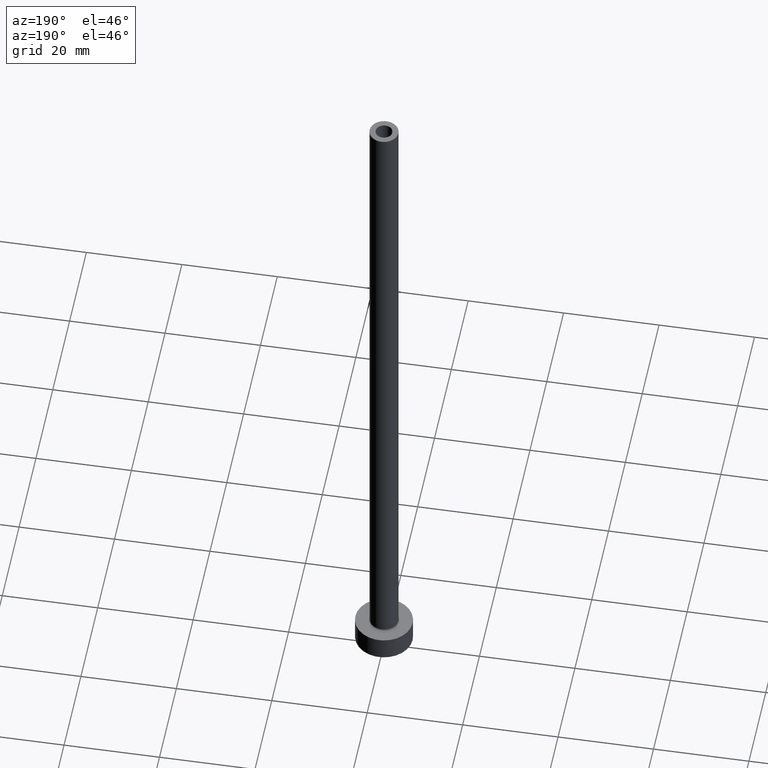
[diagram: clean part render]
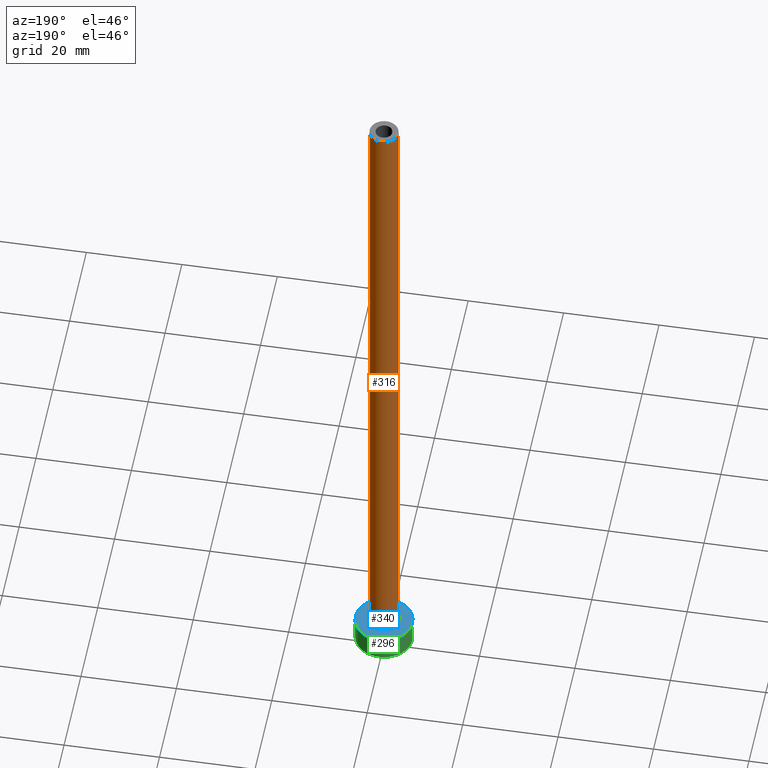
[diagram: same view with three faces highlighted in distinct colors, each labeled with its STEP entity id]
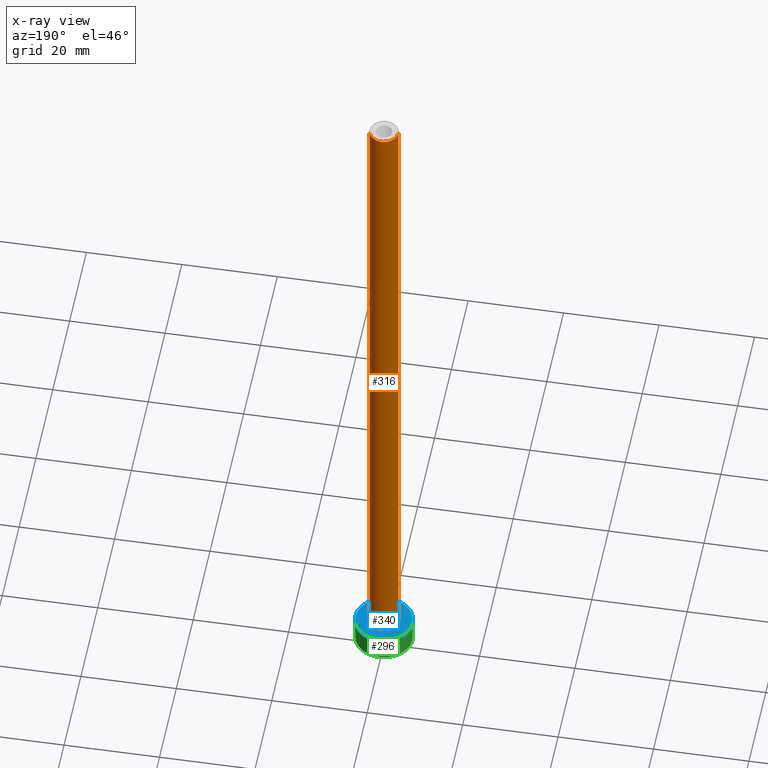
[diagram: x-ray of the same camera — body ghosted, the three highlighted faces saturated]
A machine part, auxiliary view with three faces highlighted in distinct colors.
The next image is the same camera in x-ray (body ghosted, the three faces saturated) — at least one of them is partly hidden behind the body in this view.
Their STEP definitions:

[orange] entity #316 — the highlighted cylindrical surface (edge-blend (fillet) strip) has radius 3 mm, axis along (-0, -0, -1).
#29 = DIRECTION ( 'NONE',  ( 0.000000000000000000, 0.000000000000000000, 1.000000000000000000 ) ) ;
#32 = CARTESIAN_POINT ( 'NONE',  ( 0.000000000000000000, 0.000000000000000000, 150.0000000000000000 ) ) ;
#38 = ORIENTED_EDGE ( 'NONE', *, *, #421, .F. ) ;
#41 = EDGE_CURVE ( 'NONE', #439, #371, #423, .T. ) ;
#47 = EDGE_LOOP ( 'NONE', ( #38, #87, #286, #305 ) ) ;
#67 = EDGE_CURVE ( 'NONE', #326, #439, #315, .T. ) ;
#70 = FACE_OUTER_BOUND ( 'NONE', #47, .T. ) ;
#84 = CARTESIAN_POINT ( 'NONE',  ( 3.000000000000000444, 3.673940397442060361E-16, 5.299999999999998934 ) ) ;
#87 = ORIENTED_EDGE ( 'NONE', *, *, #67, .T. ) ;
#100 = DIRECTION ( 'NONE',  ( -0.000000000000000000, -0.000000000000000000, -1.000000000000000000 ) ) ;
#109 = CYLINDRICAL_SURFACE ( 'NONE', #185, 3.000000000000000444 ) ;
#147 = DIRECTION ( 'NONE',  ( 0.000000000000000000, 0.000000000000000000, 1.000000000000000000 ) ) ;
#154 = AXIS2_PLACEMENT_3D ( 'NONE', #177, #29, #377 ) ;
#177 = CARTESIAN_POINT ( 'NONE',  ( 0.000000000000000000, 0.000000000000000000, 5.299999999999998934 ) ) ;
#185 = AXIS2_PLACEMENT_3D ( 'NONE', #387, #354, #319 ) ;
#194 = EDGE_CURVE ( 'NONE', #328, #371, #434, .T. ) ;
#213 = CARTESIAN_POINT ( 'NONE',  ( -3.000000000000000444, 0.000000000000000000, 150.0000000000000000 ) ) ;
#229 = VECTOR ( 'NONE', #389, 1000.000000000000000 ) ;
#237 = CARTESIAN_POINT ( 'NONE',  ( 3.000000000000000444, 3.673940397442060361E-16, 150.0000000000000000 ) ) ;
#243 = CARTESIAN_POINT ( 'NONE',  ( -3.000000000000000444, 0.000000000000000000, 5.299999999999998934 ) ) ;
#285 = VECTOR ( 'NONE', #100, 1000.000000000000000 ) ;
#286 = ORIENTED_EDGE ( 'NONE', *, *, #41, .T. ) ;
#305 = ORIENTED_EDGE ( 'NONE', *, *, #194, .F. ) ;
#315 = LINE ( 'NONE', #237, #285 ) ;
#316 = ADVANCED_FACE ( 'NONE', ( #70 ), #109, .T. ) ;
#319 = DIRECTION ( 'NONE',  ( -1.000000000000000000, 0.000000000000000000, 0.000000000000000000 ) ) ;
#325 = CIRCLE ( 'NONE', #350, 3.000000000000000444 ) ;
#326 = VERTEX_POINT ( 'NONE', #357 ) ;
#328 = VERTEX_POINT ( 'NONE', #460 ) ;
#350 = AXIS2_PLACEMENT_3D ( 'NONE', #32, #147, #427 ) ;
#354 = DIRECTION ( 'NONE',  ( -0.000000000000000000, -0.000000000000000000, -1.000000000000000000 ) ) ;
#357 = CARTESIAN_POINT ( 'NONE',  ( 3.000000000000000444, 3.673940397442060361E-16, 150.0000000000000000 ) ) ;
#371 = VERTEX_POINT ( 'NONE', #243 ) ;
#377 = DIRECTION ( 'NONE',  ( 1.000000000000000000, 0.000000000000000000, 0.000000000000000000 ) ) ;
#387 = CARTESIAN_POINT ( 'NONE',  ( 0.000000000000000000, 0.000000000000000000, 150.0000000000000000 ) ) ;
#389 = DIRECTION ( 'NONE',  ( -0.000000000000000000, -0.000000000000000000, -1.000000000000000000 ) ) ;
#421 = EDGE_CURVE ( 'NONE', #326, #328, #325, .T. ) ;
#423 = CIRCLE ( 'NONE', #154, 3.000000000000000444 ) ;
#427 = DIRECTION ( 'NONE',  ( 1.000000000000000000, 0.000000000000000000, 0.000000000000000000 ) ) ;
#434 = LINE ( 'NONE', #213, #229 ) ;
#439 = VERTEX_POINT ( 'NONE', #84 ) ;
#460 = CARTESIAN_POINT ( 'NONE',  ( -3.000000000000000444, 0.000000000000000000, 150.0000000000000000 ) ) ;

[blue] entity #340 — the highlighted planar face has unit normal (0, 0, 1).
#3 = FACE_OUTER_BOUND ( 'NONE', #355, .T. ) ;
#4 = DIRECTION ( 'NONE',  ( 1.000000000000000000, 0.000000000000000000, -0.000000000000000000 ) ) ;
#7 = CIRCLE ( 'NONE', #254, 3.300000000000000266 ) ;
#24 = EDGE_CURVE ( 'NONE', #400, #337, #293, .T. ) ;
#58 = CIRCLE ( 'NONE', #405, 6.000000000000000888 ) ;
#69 = CARTESIAN_POINT ( 'NONE',  ( 3.300000000000000266, 0.000000000000000000, 4.999999999999999112 ) ) ;
#89 = ORIENTED_EDGE ( 'NONE', *, *, #134, .T. ) ;
#91 = DIRECTION ( 'NONE',  ( 1.000000000000000000, 0.000000000000000000, 0.000000000000000000 ) ) ;
#94 = AXIS2_PLACEMENT_3D ( 'NONE', #136, #342, #240 ) ;
#134 = EDGE_CURVE ( 'NONE', #241, #395, #276, .T. ) ;
#136 = CARTESIAN_POINT ( 'NONE',  ( 0.000000000000000000, 0.000000000000000000, 5.000000000000000000 ) ) ;
#142 = CARTESIAN_POINT ( 'NONE',  ( 0.000000000000000000, 0.000000000000000000, 5.000000000000000000 ) ) ;
#144 = DIRECTION ( 'NONE',  ( 0.000000000000000000, 0.000000000000000000, 1.000000000000000000 ) ) ;
#148 = PLANE ( 'NONE',  #284 ) ;
#169 = ORIENTED_EDGE ( 'NONE', *, *, #24, .T. ) ;
#183 = CARTESIAN_POINT ( 'NONE',  ( 0.000000000000000000, 0.000000000000000000, 5.000000000000000000 ) ) ;
#184 = CARTESIAN_POINT ( 'NONE',  ( -3.300000000000000266, 4.041334437186266003E-16, 4.999999999999999112 ) ) ;
#209 = CARTESIAN_POINT ( 'NONE',  ( 6.000000000000000888, 7.347880794884120722E-16, 5.000000000000000000 ) ) ;
#240 = DIRECTION ( 'NONE',  ( 1.000000000000000000, 0.000000000000000000, 0.000000000000000000 ) ) ;
#241 = VERTEX_POINT ( 'NONE', #304 ) ;
#250 = DIRECTION ( 'NONE',  ( 0.000000000000000000, 0.000000000000000000, 1.000000000000000000 ) ) ;
#252 = EDGE_CURVE ( 'NONE', #337, #400, #7, .T. ) ;
#253 = AXIS2_PLACEMENT_3D ( 'NONE', #142, #281, #420 ) ;
#254 = AXIS2_PLACEMENT_3D ( 'NONE', #403, #338, #91 ) ;
#276 = CIRCLE ( 'NONE', #253, 6.000000000000000888 ) ;
#281 = DIRECTION ( 'NONE',  ( 0.000000000000000000, 0.000000000000000000, 1.000000000000000000 ) ) ;
#284 = AXIS2_PLACEMENT_3D ( 'NONE', #287, #144, #4 ) ;
#287 = CARTESIAN_POINT ( 'NONE',  ( 0.000000000000000000, 0.000000000000000000, 5.000000000000000000 ) ) ;
#289 = DIRECTION ( 'NONE',  ( 1.000000000000000000, 0.000000000000000000, 0.000000000000000000 ) ) ;
#293 = CIRCLE ( 'NONE', #94, 3.300000000000000266 ) ;
#304 = CARTESIAN_POINT ( 'NONE',  ( -6.000000000000000888, 0.000000000000000000, 5.000000000000000000 ) ) ;
#310 = ORIENTED_EDGE ( 'NONE', *, *, #367, .T. ) ;
#322 = FACE_BOUND ( 'NONE', #443, .T. ) ;
#337 = VERTEX_POINT ( 'NONE', #184 ) ;
#338 = DIRECTION ( 'NONE',  ( -0.000000000000000000, -0.000000000000000000, -1.000000000000000000 ) ) ;
#340 = ADVANCED_FACE ( 'NONE', ( #322, #3 ), #148, .T. ) ;
#342 = DIRECTION ( 'NONE',  ( -0.000000000000000000, -0.000000000000000000, -1.000000000000000000 ) ) ;
#355 = EDGE_LOOP ( 'NONE', ( #89, #310 ) ) ;
#360 = ORIENTED_EDGE ( 'NONE', *, *, #252, .T. ) ;
#367 = EDGE_CURVE ( 'NONE', #395, #241, #58, .T. ) ;
#395 = VERTEX_POINT ( 'NONE', #209 ) ;
#400 = VERTEX_POINT ( 'NONE', #69 ) ;
#403 = CARTESIAN_POINT ( 'NONE',  ( 0.000000000000000000, 0.000000000000000000, 5.000000000000000000 ) ) ;
#405 = AXIS2_PLACEMENT_3D ( 'NONE', #183, #250, #289 ) ;
#420 = DIRECTION ( 'NONE',  ( 1.000000000000000000, 0.000000000000000000, 0.000000000000000000 ) ) ;
#443 = EDGE_LOOP ( 'NONE', ( #169, #360 ) ) ;

[green] entity #296 — the highlighted cylindrical surface (edge-blend (fillet) strip) has radius 6 mm, axis along (-0, -0, -1).
#1 = AXIS2_PLACEMENT_3D ( 'NONE', #35, #388, #108 ) ;
#35 = CARTESIAN_POINT ( 'NONE',  ( 0.000000000000000000, 0.000000000000000000, 0.000000000000000000 ) ) ;
#50 = VECTOR ( 'NONE', #380, 1000.000000000000000 ) ;
#58 = CIRCLE ( 'NONE', #405, 6.000000000000000888 ) ;
#66 = LINE ( 'NONE', #244, #50 ) ;
#73 = FACE_OUTER_BOUND ( 'NONE', #123, .T. ) ;
#108 = DIRECTION ( 'NONE',  ( 1.000000000000000000, 0.000000000000000000, 0.000000000000000000 ) ) ;
#113 = CARTESIAN_POINT ( 'NONE',  ( 0.000000000000000000, 0.000000000000000000, 5.000000000000000000 ) ) ;
#123 = EDGE_LOOP ( 'NONE', ( #199, #275, #314, #195 ) ) ;
#145 = EDGE_CURVE ( 'NONE', #241, #330, #66, .T. ) ;
#163 = EDGE_CURVE ( 'NONE', #395, #398, #327, .T. ) ;
#182 = CARTESIAN_POINT ( 'NONE',  ( -6.000000000000000888, 0.000000000000000000, 0.000000000000000000 ) ) ;
#183 = CARTESIAN_POINT ( 'NONE',  ( 0.000000000000000000, 0.000000000000000000, 5.000000000000000000 ) ) ;
#195 = ORIENTED_EDGE ( 'NONE', *, *, #145, .F. ) ;
#199 = ORIENTED_EDGE ( 'NONE', *, *, #367, .F. ) ;
#209 = CARTESIAN_POINT ( 'NONE',  ( 6.000000000000000888, 7.347880794884120722E-16, 5.000000000000000000 ) ) ;
#215 = CYLINDRICAL_SURFACE ( 'NONE', #431, 6.000000000000000888 ) ;
#241 = VERTEX_POINT ( 'NONE', #304 ) ;
#244 = CARTESIAN_POINT ( 'NONE',  ( -6.000000000000000888, 0.000000000000000000, 5.000000000000000000 ) ) ;
#250 = DIRECTION ( 'NONE',  ( 0.000000000000000000, 0.000000000000000000, 1.000000000000000000 ) ) ;
#275 = ORIENTED_EDGE ( 'NONE', *, *, #163, .T. ) ;
#289 = DIRECTION ( 'NONE',  ( 1.000000000000000000, 0.000000000000000000, 0.000000000000000000 ) ) ;
#295 = DIRECTION ( 'NONE',  ( -0.000000000000000000, -0.000000000000000000, -1.000000000000000000 ) ) ;
#296 = ADVANCED_FACE ( 'NONE', ( #73 ), #215, .T. ) ;
#299 = CARTESIAN_POINT ( 'NONE',  ( 6.000000000000000888, 7.347880794884120722E-16, 5.000000000000000000 ) ) ;
#304 = CARTESIAN_POINT ( 'NONE',  ( -6.000000000000000888, 0.000000000000000000, 5.000000000000000000 ) ) ;
#314 = ORIENTED_EDGE ( 'NONE', *, *, #361, .T. ) ;
#327 = LINE ( 'NONE', #299, #447 ) ;
#330 = VERTEX_POINT ( 'NONE', #182 ) ;
#361 = EDGE_CURVE ( 'NONE', #398, #330, #382, .T. ) ;
#367 = EDGE_CURVE ( 'NONE', #395, #241, #58, .T. ) ;
#380 = DIRECTION ( 'NONE',  ( -0.000000000000000000, -0.000000000000000000, -1.000000000000000000 ) ) ;
#382 = CIRCLE ( 'NONE', #1, 6.000000000000000888 ) ;
#384 = DIRECTION ( 'NONE',  ( -0.000000000000000000, -0.000000000000000000, -1.000000000000000000 ) ) ;
#388 = DIRECTION ( 'NONE',  ( 0.000000000000000000, 0.000000000000000000, 1.000000000000000000 ) ) ;
#395 = VERTEX_POINT ( 'NONE', #209 ) ;
#398 = VERTEX_POINT ( 'NONE', #429 ) ;
#405 = AXIS2_PLACEMENT_3D ( 'NONE', #183, #250, #289 ) ;
#425 = DIRECTION ( 'NONE',  ( -1.000000000000000000, 0.000000000000000000, 0.000000000000000000 ) ) ;
#429 = CARTESIAN_POINT ( 'NONE',  ( 6.000000000000000888, 7.347880794884120722E-16, 0.000000000000000000 ) ) ;
#431 = AXIS2_PLACEMENT_3D ( 'NONE', #113, #384, #425 ) ;
#447 = VECTOR ( 'NONE', #295, 1000.000000000000000 ) ;